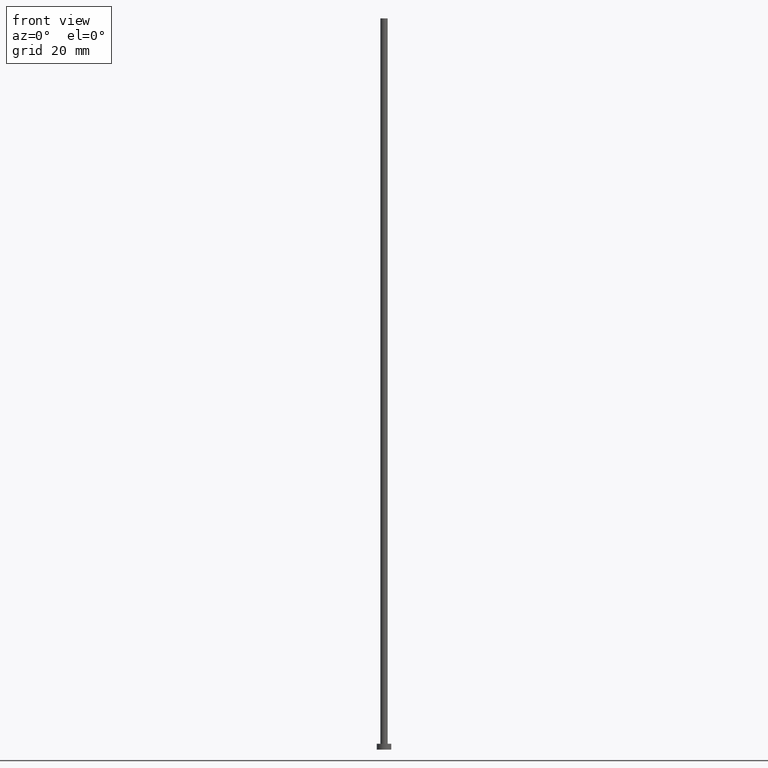
[diagram: clean part render]
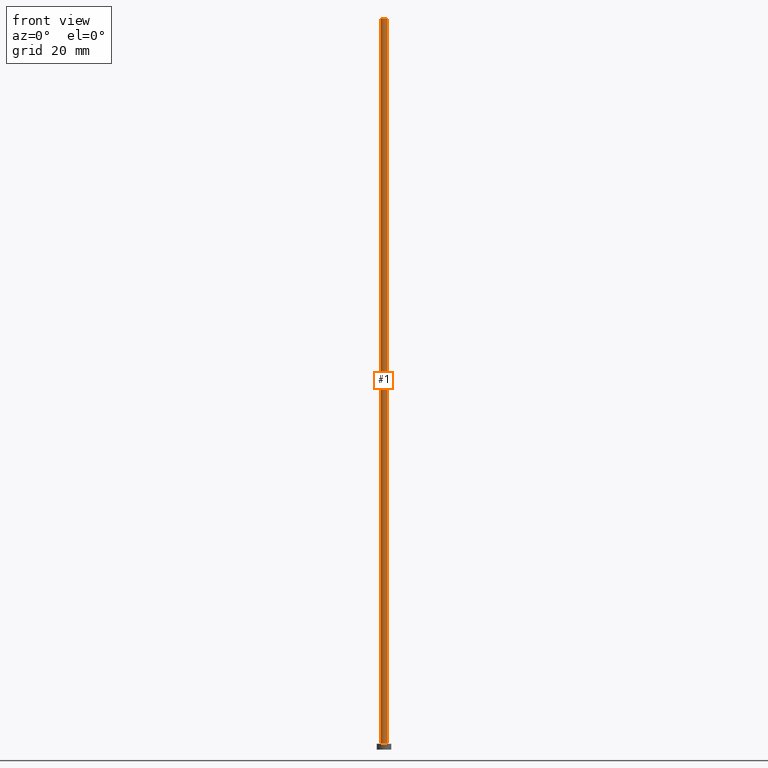
[diagram: same view with one face highlighted and labeled with its STEP entity id]
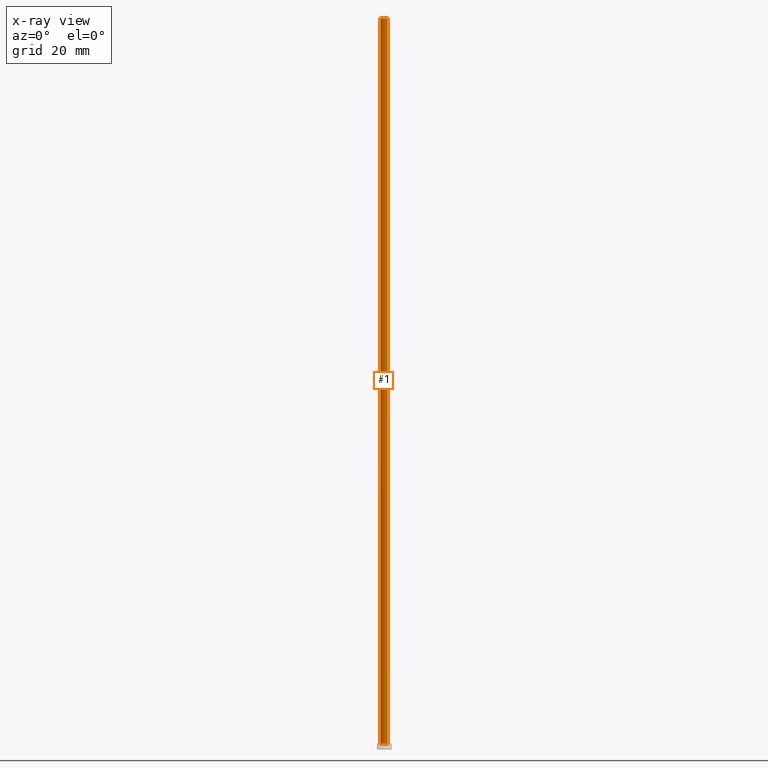
[diagram: x-ray of the same camera — body ghosted, the highlighted face saturated]
A machine part, front view. The second image highlights one B-rep face of the part: STEP entity #1.
The next image is the same camera in x-ray: the body ghosted, the highlighted face saturated — about 0% of this face is hidden behind the body in this view.
In plain terms, the highlighted cylindrical surface (edge-blend (fillet) strip) has radius 1.25 mm, axis along (-0, -0, -1).
Its self-contained STEP definition (entity closure, byte-faithful):
#1 = ADVANCED_FACE ( 'NONE', ( #233 ), #209, .T. ) ;
#8 = EDGE_LOOP ( 'NONE', ( #17, #232, #82, #156 ) ) ;
#11 = CARTESIAN_POINT ( 'NONE',  ( -1.250000000000000000, 0.000000000000000000, 250.0000000000000000 ) ) ;
#13 = EDGE_CURVE ( 'NONE', #176, #99, #210, .T. ) ;
#15 = VERTEX_POINT ( 'NONE', #59 ) ;
#17 = ORIENTED_EDGE ( 'NONE', *, *, #34, .F. ) ;
#20 = AXIS2_PLACEMENT_3D ( 'NONE', #158, #155, #60 ) ;
#33 = DIRECTION ( 'NONE',  ( -0.000000000000000000, -0.000000000000000000, -1.000000000000000000 ) ) ;
#34 = EDGE_CURVE ( 'NONE', #15, #99, #113, .T. ) ;
#46 = VECTOR ( 'NONE', #138, 1000.000000000000000 ) ;
#56 = EDGE_CURVE ( 'NONE', #78, #15, #71, .T. ) ;
#59 = CARTESIAN_POINT ( 'NONE',  ( 1.250000000000000000, 1.530808498934191571E-16, 250.0000000000000000 ) ) ;
#60 = DIRECTION ( 'NONE',  ( 1.000000000000000000, 0.000000000000000000, 0.000000000000000000 ) ) ;
#61 = AXIS2_PLACEMENT_3D ( 'NONE', #62, #116, #228 ) ;
#62 = CARTESIAN_POINT ( 'NONE',  ( 0.000000000000000000, 0.000000000000000000, 2.000000000000000000 ) ) ;
#66 = VECTOR ( 'NONE', #95, 1000.000000000000000 ) ;
#71 = CIRCLE ( 'NONE', #20, 1.250000000000000000 ) ;
#78 = VERTEX_POINT ( 'NONE', #214 ) ;
#79 = LINE ( 'NONE', #11, #66 ) ;
#82 = ORIENTED_EDGE ( 'NONE', *, *, #132, .T. ) ;
#95 = DIRECTION ( 'NONE',  ( -0.000000000000000000, -0.000000000000000000, -1.000000000000000000 ) ) ;
#97 = CARTESIAN_POINT ( 'NONE',  ( 0.000000000000000000, 0.000000000000000000, 250.0000000000000000 ) ) ;
#99 = VERTEX_POINT ( 'NONE', #250 ) ;
#113 = LINE ( 'NONE', #249, #46 ) ;
#116 = DIRECTION ( 'NONE',  ( 0.000000000000000000, 0.000000000000000000, 1.000000000000000000 ) ) ;
#132 = EDGE_CURVE ( 'NONE', #78, #176, #79, .T. ) ;
#138 = DIRECTION ( 'NONE',  ( -0.000000000000000000, -0.000000000000000000, -1.000000000000000000 ) ) ;
#155 = DIRECTION ( 'NONE',  ( 0.000000000000000000, 0.000000000000000000, 1.000000000000000000 ) ) ;
#156 = ORIENTED_EDGE ( 'NONE', *, *, #13, .T. ) ;
#158 = CARTESIAN_POINT ( 'NONE',  ( 0.000000000000000000, 0.000000000000000000, 250.0000000000000000 ) ) ;
#174 = DIRECTION ( 'NONE',  ( -1.000000000000000000, 0.000000000000000000, 0.000000000000000000 ) ) ;
#176 = VERTEX_POINT ( 'NONE', #239 ) ;
#182 = AXIS2_PLACEMENT_3D ( 'NONE', #97, #33, #174 ) ;
#209 = CYLINDRICAL_SURFACE ( 'NONE', #182, 1.250000000000000000 ) ;
#210 = CIRCLE ( 'NONE', #61, 1.250000000000000000 ) ;
#214 = CARTESIAN_POINT ( 'NONE',  ( -1.250000000000000000, 0.000000000000000000, 250.0000000000000000 ) ) ;
#228 = DIRECTION ( 'NONE',  ( 1.000000000000000000, 0.000000000000000000, 0.000000000000000000 ) ) ;
#232 = ORIENTED_EDGE ( 'NONE', *, *, #56, .F. ) ;
#233 = FACE_OUTER_BOUND ( 'NONE', #8, .T. ) ;
#239 = CARTESIAN_POINT ( 'NONE',  ( -1.250000000000000000, 0.000000000000000000, 2.000000000000000000 ) ) ;
#249 = CARTESIAN_POINT ( 'NONE',  ( 1.250000000000000000, 1.530808498934191571E-16, 250.0000000000000000 ) ) ;
#250 = CARTESIAN_POINT ( 'NONE',  ( 1.250000000000000000, 1.530808498934191571E-16, 2.000000000000000000 ) ) ;